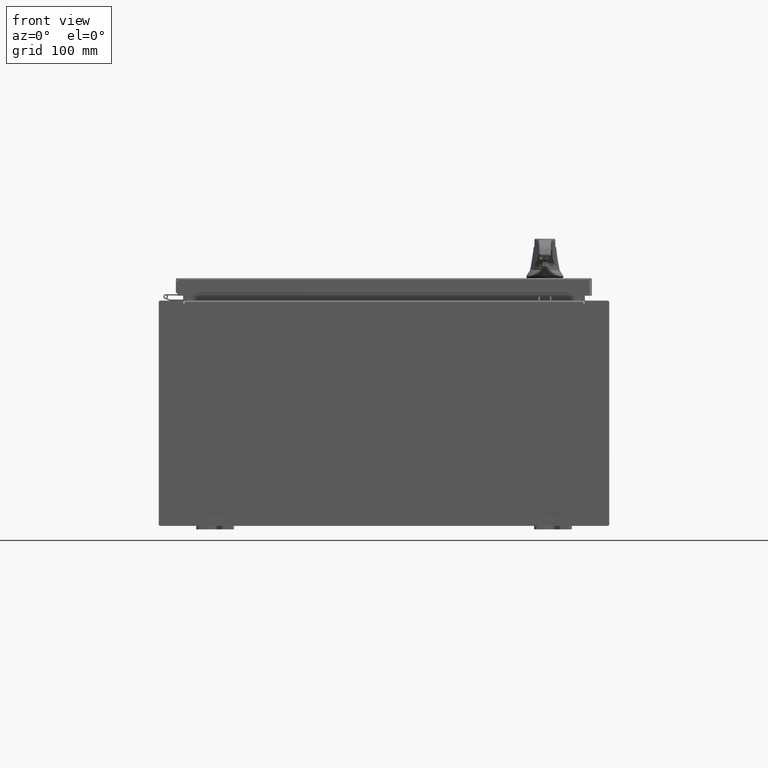
[diagram: clean part render]
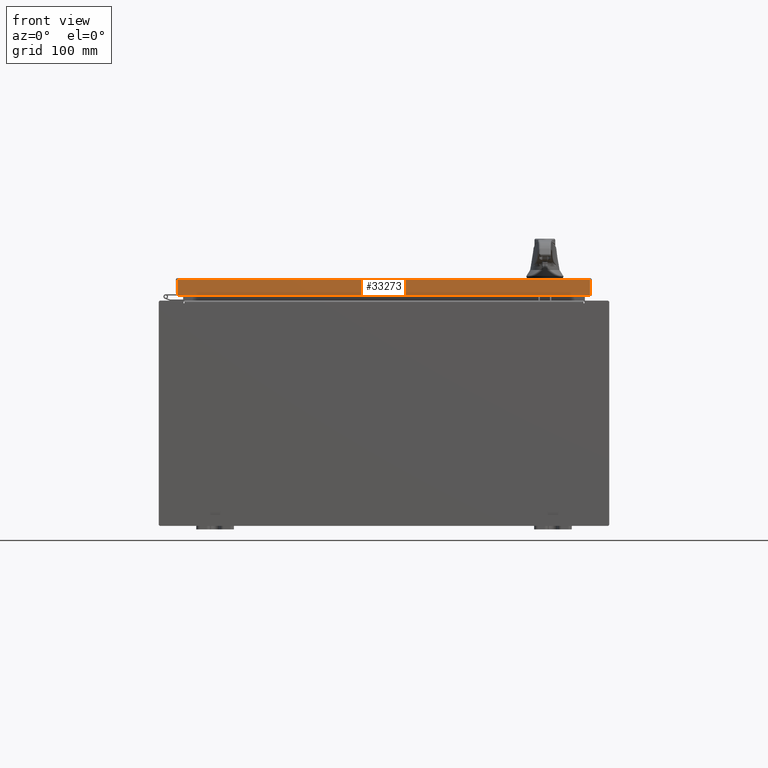
[diagram: same view with one face highlighted and labeled with its STEP entity id]
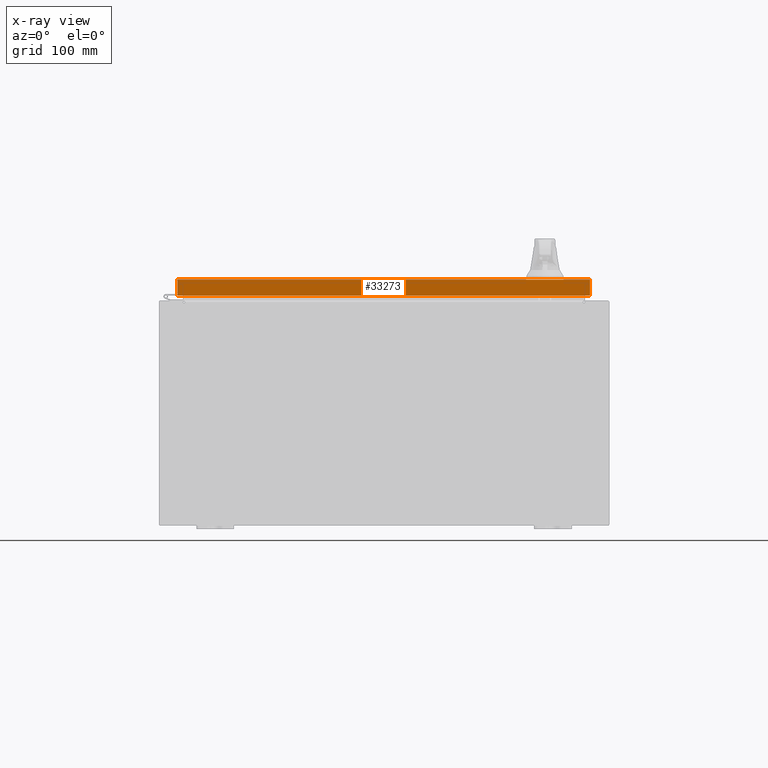
[diagram: x-ray of the same camera — body ghosted, the highlighted face saturated]
A machine part, front view. The second image highlights one B-rep face of the part: STEP entity #33273.
The next image is the same camera in x-ray: the body ghosted, the highlighted face saturated — about 0% of this face is hidden behind the body in this view.
In plain terms, the highlighted planar face has unit normal (-0, 1, -0).
Its self-contained STEP definition (entity closure, byte-faithful):
#3610 = LINE ( 'NONE', #28464, #6320 ) ;
#6320 = VECTOR ( 'NONE', #80412, 39.37007874015748100 ) ;
#7047 = EDGE_CURVE ( 'NONE', #63279, #50382, #56229, .T. ) ;
#10299 = LINE ( 'NONE', #111899, #53726 ) ;
#10895 = VECTOR ( 'NONE', #60233, 39.37007874015748100 ) ;
#15663 = VERTEX_POINT ( 'NONE', #108540 ) ;
#20665 = PLANE ( 'NONE',  #53728 ) ;
#28464 = CARTESIAN_POINT ( 'NONE',  ( 10.98915786437626400, -11.09400000000000100, -0.07469999999999980800 ) ) ;
#30296 = ORIENTED_EDGE ( 'NONE', *, *, #7047, .F. ) ;
#31208 = DIRECTION ( 'NONE',  ( -1.000000000000000000, -0.0000000000000000000, 1.233005954894504400E-016 ) ) ;
#33273 = ADVANCED_FACE ( 'NONE', ( #38892 ), #20665, .F. ) ;
#37613 = CARTESIAN_POINT ( 'NONE',  ( 10.98915786437626400, -11.09400000000000100, -0.08770000000000008300 ) ) ;
#38892 = FACE_OUTER_BOUND ( 'NONE', #80047, .T. ) ;
#46820 = DIRECTION ( 'NONE',  ( -3.122488847327593000E-031, 1.000000000000000000, -2.532419924601866100E-015 ) ) ;
#50382 = VERTEX_POINT ( 'NONE', #93089 ) ;
#51321 = DIRECTION ( 'NONE',  ( 1.000000000000000000, 3.122488847327593500E-031, -7.817847125977043000E-046 ) ) ;
#51806 = CARTESIAN_POINT ( 'NONE',  ( 10.98915786437626400, -11.09400000000000300, -0.9376999999999997600 ) ) ;
#53726 = VECTOR ( 'NONE', #51321, 39.37007874015748100 ) ;
#53728 = AXIS2_PLACEMENT_3D ( 'NONE', #98655, #46820, #107399 ) ;
#54339 = LINE ( 'NONE', #68974, #10895 ) ;
#56229 = LINE ( 'NONE', #56962, #76615 ) ;
#56962 = CARTESIAN_POINT ( 'NONE',  ( 11.07799999999999600, -11.09400000000000300, -0.9376999999999997600 ) ) ;
#60233 = DIRECTION ( 'NONE',  ( 0.0000000000000000000, -2.532419924601866100E-015, -1.000000000000000000 ) ) ;
#63279 = VERTEX_POINT ( 'NONE', #51806 ) ;
#68974 = CARTESIAN_POINT ( 'NONE',  ( -10.98915786437626900, -11.09400000000000100, 2.835548029954469000E-014 ) ) ;
#76615 = VECTOR ( 'NONE', #31208, 39.37007874015748100 ) ;
#80047 = EDGE_LOOP ( 'NONE', ( #105678, #105853, #30296, #83519 ) ) ;
#80412 = DIRECTION ( 'NONE',  ( -0.0000000000000000000, -2.532419924601866100E-015, -1.000000000000000000 ) ) ;
#80421 = EDGE_CURVE ( 'NONE', #15663, #107334, #10299, .T. ) ;
#83519 = ORIENTED_EDGE ( 'NONE', *, *, #102984, .F. ) ;
#93089 = CARTESIAN_POINT ( 'NONE',  ( -10.98915786437627200, -11.09400000000000300, -0.9376999999999970900 ) ) ;
#98655 = CARTESIAN_POINT ( 'NONE',  ( 3.464089127225232200E-030, -11.09400000000000100, 2.835548029954469000E-014 ) ) ;
#102984 = EDGE_CURVE ( 'NONE', #107334, #63279, #3610, .T. ) ;
#105678 = ORIENTED_EDGE ( 'NONE', *, *, #80421, .F. ) ;
#105853 = ORIENTED_EDGE ( 'NONE', *, *, #111277, .T. ) ;
#107334 = VERTEX_POINT ( 'NONE', #37613 ) ;
#107399 = DIRECTION ( 'NONE',  ( 0.0000000000000000000, 2.532419924601866100E-015, 1.000000000000000000 ) ) ;
#108540 = CARTESIAN_POINT ( 'NONE',  ( -10.98915786437627200, -11.09400000000000100, -0.08770000000000008300 ) ) ;
#111277 = EDGE_CURVE ( 'NONE', #15663, #50382, #54339, .T. ) ;
#111899 = CARTESIAN_POINT ( 'NONE',  ( 11.07799999999999600, -11.09400000000000100, -0.08770000000000008300 ) ) ;